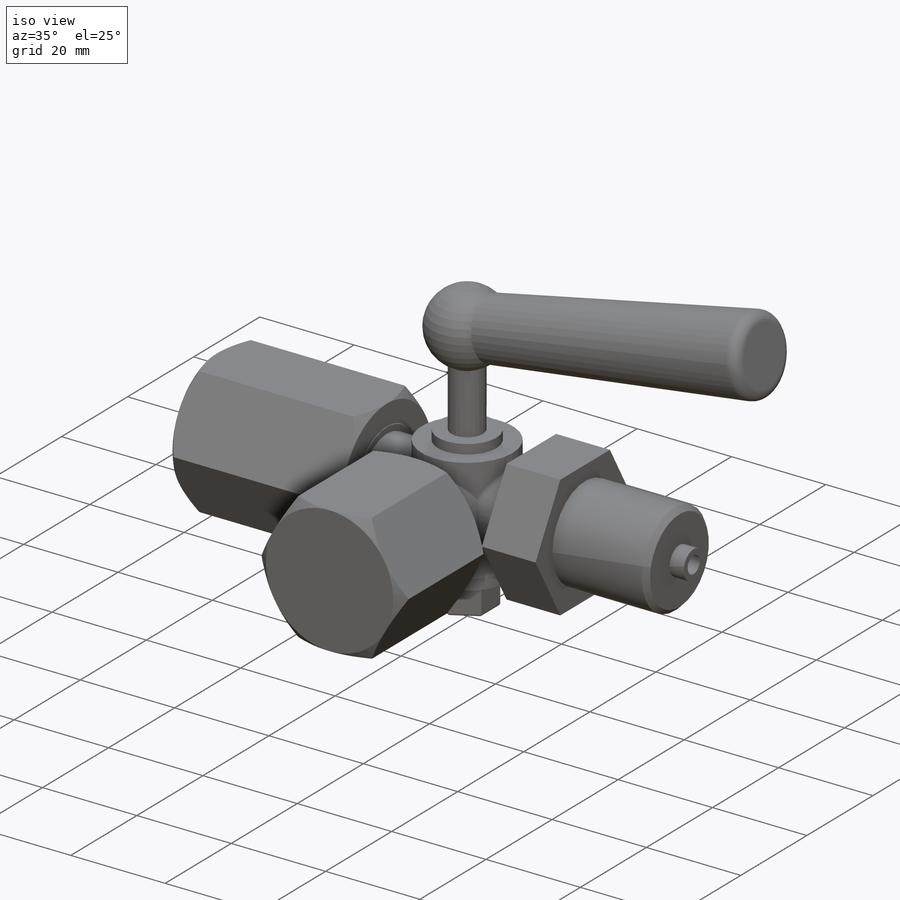
[diagram: iso view]
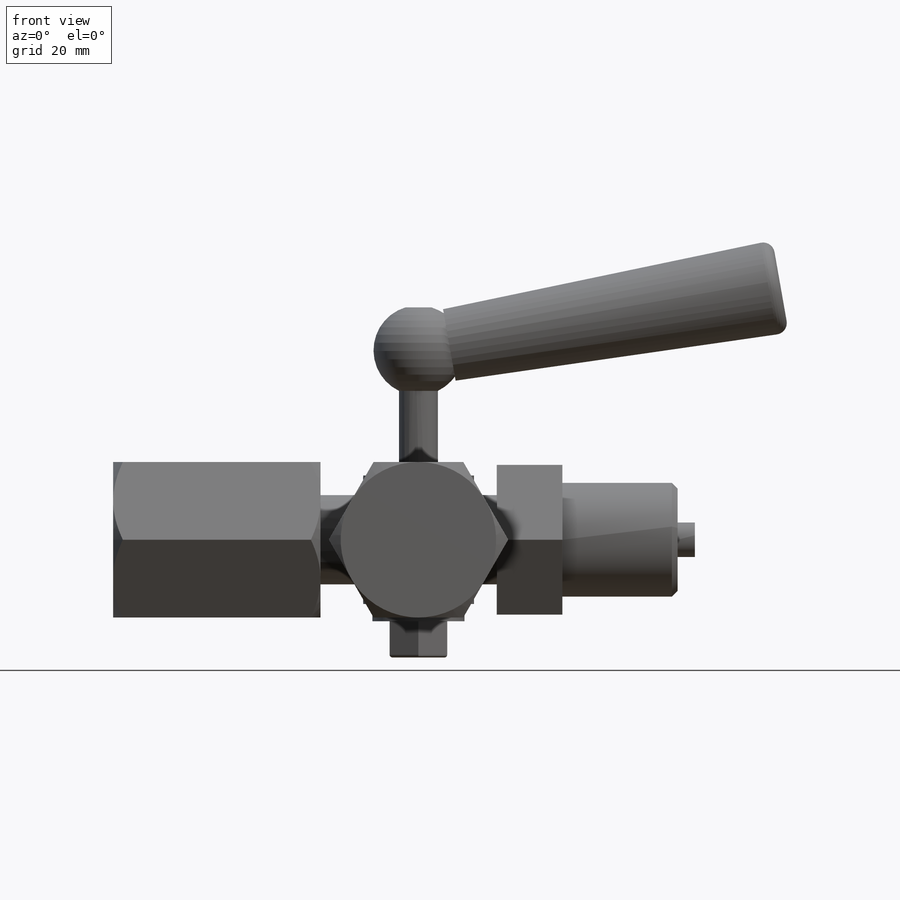
[diagram: front view]
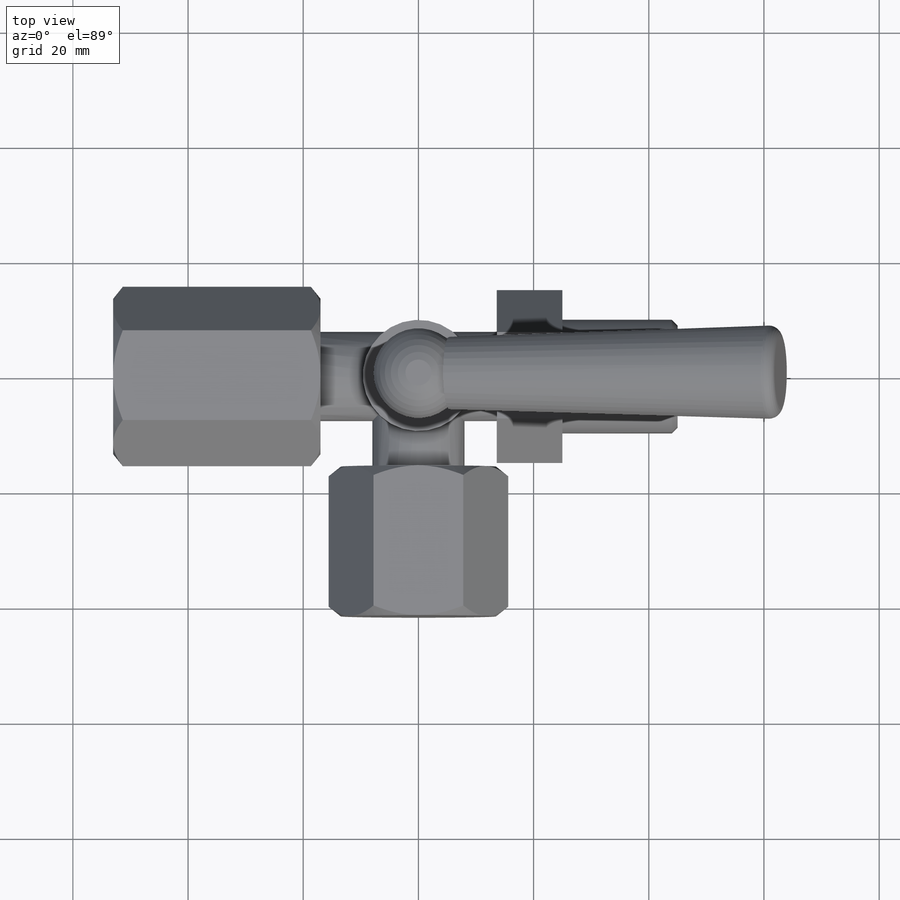
[diagram: top view]
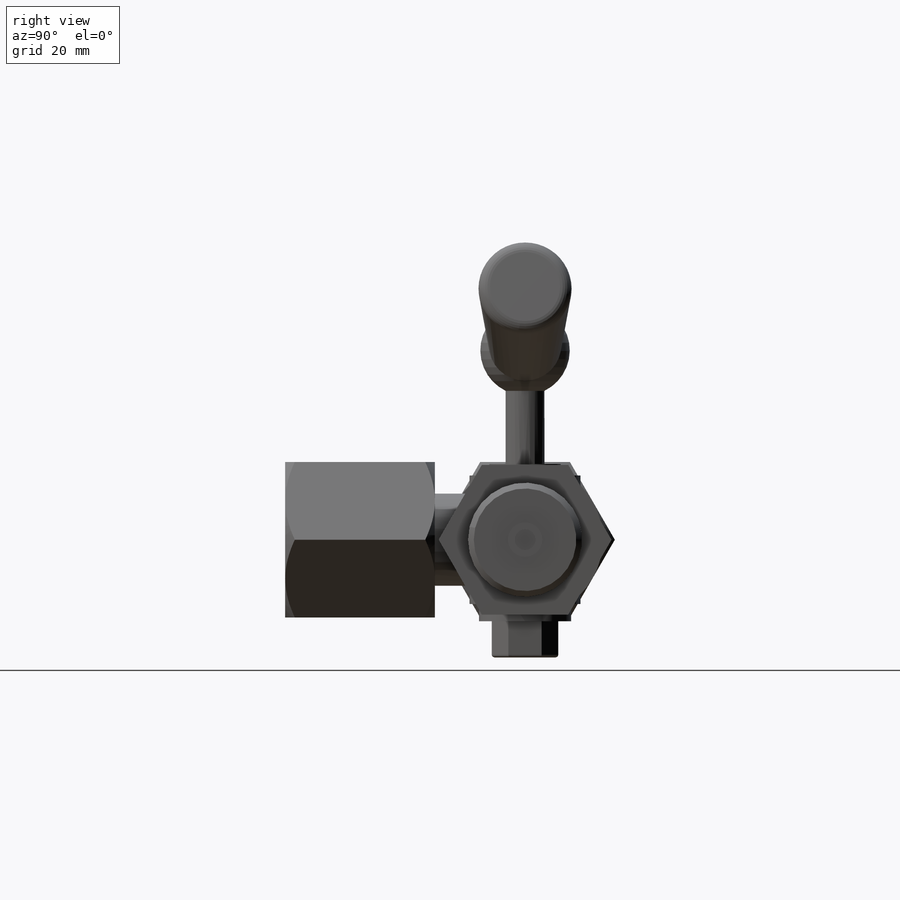
[diagram: right view]
SOLIDWORKS PART (.sldprt)
format: sldprt  version: not decoded by parser v0  size: 522,752 bytes
history: native  units: mm
features: sketch x12, revolve x4, extrude x4, plane x3, fillet x3, cut_extrude x2, chamfer x2, cut_revolve x2, material x1 (+8 scaffold rows collapsed)
feature tree (41):
  scaffold x8  (default folders/planes/origin — collapsed)
  material  "Materiál <není určen>"
  plane  "Přední rovina"
  plane  "Horní rovina"
  plane  "Pravá rovina"
  sketch  "Skica1"  dims[D1=~16.404176mm D2=4.5mm D3=54.5mm D4=3.0mm D5=22.3mm D6=19.3mm D7=16.0mm D8=12.4mm D9=2.0mm D10=12.7mm]
  revolve  "Rotovat1"  Angle=360deg
  sketch  "Skica2"  dims[c1.D1=4.5mm c2.D1=80.0deg c2.D2=4.4mm]
  cut_extrude  "Odebrat vysunutím1"  [1 undecoded]
  sketch  "Skica3"  dims[D1=58.4mm D2=16.3mm D3=12.6mm]
  revolve  "Rotovat2"  Angle=360deg
  fillet  "Zaoblit1"  Radius=2mm
  sketch  "Skica4"  dims[c1.D1=15.5mm c1.D2=20.0mm c1.D3=18.0mm c1.D4=83.0mm c1.D5=35.0mm c1.D6=19.8mm c1.D7=3.0mm c1.D8=6.0mm c1.D9=3.6mm c1.D10=20.0mm c1.D11=6.0mm c1.D12=~6.210971mm c2.D11=7.0mm c2.D12=7.0mm]
  revolve  "Rotovat3"  Angle=360deg
  fillet  "Zaoblit2"  Radius=1mm
  sketch  "Skica5"  dims[D1=26.0mm]
  extrude  "Přidat vysunutím1"  Depth=11.4mm
  chamfer  "Zkosení1"  Distance=1mm Angle=45deg
  sketch  "Skica6"  dims[D1=27.0mm D2=18.3mm]
  extrude  "Přidat vysunutím2"  Depth=36mm
  sketch  "Skica7"  dims[D1=2.5mm D2=2.0mm]
  cut_revolve  "Odebrat rotací1"  Angle=360deg
  sketch  "Skica9"  dims[D1=10.0mm]
  extrude  "Přidat vysunutím3"  Depth=6.3mm
  fillet  "Zaoblit3"  Radius=0.5mm
  sketch  "Skica10"  dims[D1=26.0mm D2=7.0mm D3=7.0mm D4=19.8mm D5=16.0mm D6=16.0mm]
  revolve  "Rotovat4"  Angle=360deg
  chamfer  "Zkosení2"  Distance=1mm Angle=45deg
  sketch  "Skica11"  dims[D1=27.0mm D2=20.0mm]
  extrude  "Přidat vysunutím4"  Depth=26mm
  cut_extrude  "Odebrat vysunutím2"  [1 undecoded]
  sketch  "Skica11<3>"
  sketch  "Skica12"  dims[D1=2.5mm D2=2.0mm]
  cut_revolve  "Odebrat rotací2"  Angle=360deg
decode coverage: 26 of 29 modeling features carry decoded parameters
note: ~ marks probable driven/reference dimensions
note: 2 parameter values undecoded
note: suppression state not decoded; provenance and decode notes live in map.json
